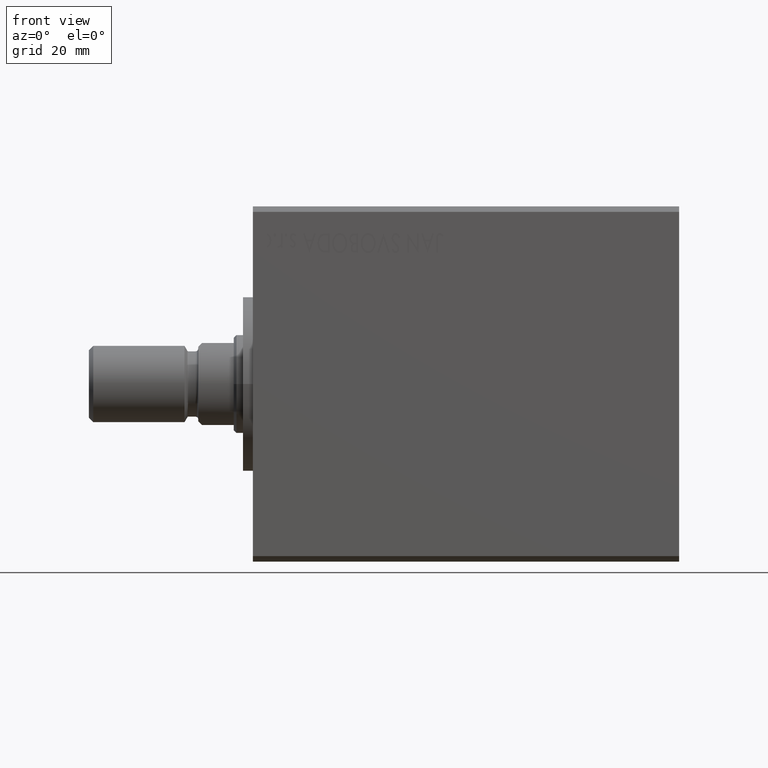
[diagram: clean part render]
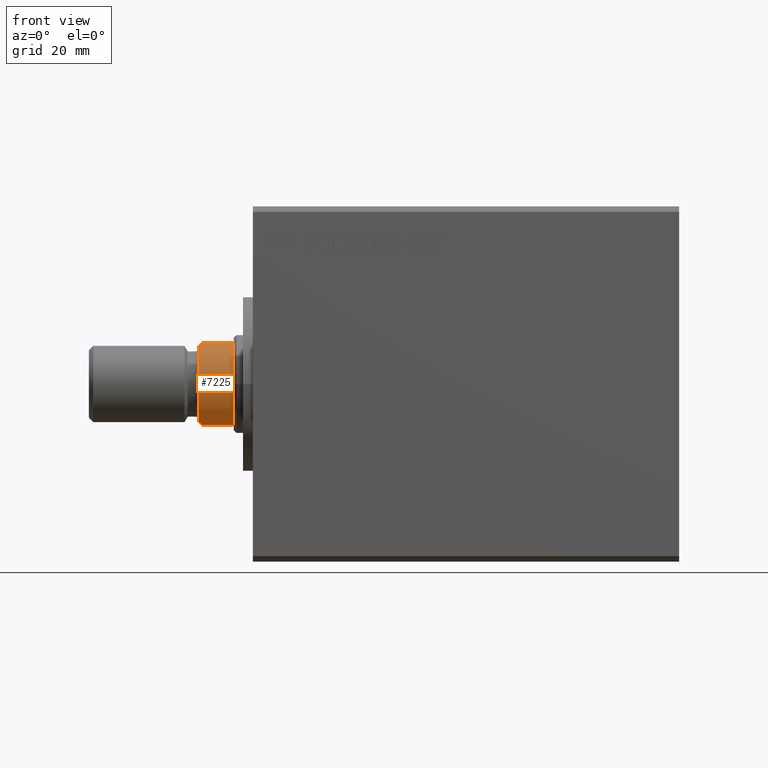
[diagram: same view with one face highlighted and labeled with its STEP entity id]
A machine part, front view. The second image highlights one B-rep face of the part: STEP entity #7225.
In plain terms, the highlighted cylindrical surface (partial cylindrical patch) has radius 8.46 mm, axis along (-1, 0, 0).
Its self-contained STEP definition (entity closure, byte-faithful):
#2417 = CIRCLE ( 'NONE', #39738, 8.460000000000000853 ) ;
#2626 = CARTESIAN_POINT ( 'NONE',  ( 6.789999999999988489, 5.046533463675839215, 65.00000000000000000 ) ) ;
#3780 = VERTEX_POINT ( 'NONE', #29110 ) ;
#4019 = ORIENTED_EDGE ( 'NONE', *, *, #34662, .T. ) ;
#4263 = VERTEX_POINT ( 'NONE', #36418 ) ;
#4539 = DIRECTION ( 'NONE',  ( 0.000000000000000000, -1.000000000000000000, 0.000000000000000000 ) ) ;
#4617 = CARTESIAN_POINT ( 'NONE',  ( 0.000000000000000000, -9.183462669335154191E-15, 58.50000000000000000 ) ) ;
#6935 = DIRECTION ( 'NONE',  ( 0.000000000000000000, -1.000000000000000000, 0.000000000000000000 ) ) ;
#7225 = ADVANCED_FACE ( 'NONE', ( #36801 ), #17042, .T. ) ;
#7471 = CARTESIAN_POINT ( 'NONE',  ( -7.499999999999998224, 3.914281543272016162, 64.29000000000000625 ) ) ;
#7859 = VERTEX_POINT ( 'NONE', #42123 ) ;
#8384 = AXIS2_PLACEMENT_3D ( 'NONE', #31613, #27798, #6935 ) ;
#8515 = ORIENTED_EDGE ( 'NONE', *, *, #42952, .T. ) ;
#8608 = VERTEX_POINT ( 'NONE', #36256 ) ;
#8653 = CIRCLE ( 'NONE', #10816, 8.460000000000000853 ) ;
#9378 = EDGE_CURVE ( 'NONE', #40896, #8608, #13626, .T. ) ;
#9487 = CARTESIAN_POINT ( 'NONE',  ( 7.499999999999998224, 3.914281543272016162, 65.00000000000000000 ) ) ;
#9565 = CARTESIAN_POINT ( 'NONE',  ( 7.499999999999998224, 3.914281543272017050, 58.50000000000000000 ) ) ;
#9639 = DIRECTION ( 'NONE',  ( 0.000000000000000000, -1.000000000000000000, 0.000000000000000000 ) ) ;
#9814 = CARTESIAN_POINT ( 'NONE',  ( -7.499999999999998224, 3.914281543272016162, 65.00000000000000000 ) ) ;
#10256 = DIRECTION ( 'NONE',  ( -0.000000000000000000, -1.569822678518829437E-16, 1.000000000000000000 ) ) ;
#10816 = AXIS2_PLACEMENT_3D ( 'NONE', #35725, #36157, #4539 ) ;
#11372 = DIRECTION ( 'NONE',  ( -0.000000000000000000, -1.569822678518829437E-16, 1.000000000000000000 ) ) ;
#12295 = CARTESIAN_POINT ( 'NONE',  ( 7.056292703106577413, 4.688242476980049034, 64.73370729689341374 ) ) ;
#12381 = ORIENTED_EDGE ( 'NONE', *, *, #9378, .T. ) ;
#12930 = ORIENTED_EDGE ( 'NONE', *, *, #43689, .T. ) ;
#13626 = LINE ( 'NONE', #9814, #35777 ) ;
#14094 = VECTOR ( 'NONE', #23171, 1000.000000000000000 ) ;
#14196 = EDGE_LOOP ( 'NONE', ( #42963, #8515, #4019, #23695, #12930, #12381, #34788 ) ) ;
#15052 = AXIS2_PLACEMENT_3D ( 'NONE', #43779, #37252, #9639 ) ;
#15080 = VERTEX_POINT ( 'NONE', #9565 ) ;
#15285 =( BOUNDED_CURVE ( )  B_SPLINE_CURVE ( 3, ( #2626, #12295, #23269, #40125 ),
 .UNSPECIFIED., .F., .F. ) 
 B_SPLINE_CURVE_WITH_KNOTS ( ( 4, 4 ),
 ( 2.502438275867301165, 2.660575627569334412 ),
 .UNSPECIFIED. ) 
 CURVE ( )  GEOMETRIC_REPRESENTATION_ITEM ( )  RATIONAL_B_SPLINE_CURVE ( ( 1.000000000000000000, 0.9979171336539678361, 0.9979171336539678361, 1.000000000000000000 ) ) 
 REPRESENTATION_ITEM ( '' )  );
#17042 = CYLINDRICAL_SURFACE ( 'NONE', #15052, 8.460000000000000853 ) ;
#19621 = EDGE_CURVE ( 'NONE', #8608, #3780, #41130, .T. ) ;
#19829 = CARTESIAN_POINT ( 'NONE',  ( 6.789999999999988489, 5.046533463675839215, 65.00000000000000000 ) ) ;
#20850 = EDGE_CURVE ( 'NONE', #38342, #3780, #8653, .T. ) ;
#23171 = DIRECTION ( 'NONE',  ( 0.000000000000000000, 1.569822678518829437E-16, -1.000000000000000000 ) ) ;
#23269 = CARTESIAN_POINT ( 'NONE',  ( 7.293453343690122104, 4.310037419592844365, 64.49654665630986017 ) ) ;
#23695 = ORIENTED_EDGE ( 'NONE', *, *, #23703, .T. ) ;
#23703 = EDGE_CURVE ( 'NONE', #15080, #7859, #2417, .T. ) ;
#27671 = CARTESIAN_POINT ( 'NONE',  ( -7.056292703106578301, 4.688242476980047257, 64.73370729689341374 ) ) ;
#27798 = DIRECTION ( 'NONE',  ( -0.000000000000000000, -1.569822678518829437E-16, 1.000000000000000000 ) ) ;
#29110 = CARTESIAN_POINT ( 'NONE',  ( -6.789999999999988489, 5.046533463675839215, 65.00000000000000000 ) ) ;
#31613 = CARTESIAN_POINT ( 'NONE',  ( 0.000000000000000000, -9.183462669335154191E-15, 58.50000000000000000 ) ) ;
#33006 = CARTESIAN_POINT ( 'NONE',  ( -7.499999999999998224, 3.914281543272017050, 58.50000000000000000 ) ) ;
#34662 = EDGE_CURVE ( 'NONE', #4263, #15080, #37317, .T. ) ;
#34788 = ORIENTED_EDGE ( 'NONE', *, *, #19621, .T. ) ;
#35614 = CIRCLE ( 'NONE', #8384, 8.460000000000000853 ) ;
#35725 = CARTESIAN_POINT ( 'NONE',  ( 0.000000000000000000, -1.020384741037239284E-14, 65.00000000000000000 ) ) ;
#35777 = VECTOR ( 'NONE', #10256, 1000.000000000000000 ) ;
#36157 = DIRECTION ( 'NONE',  ( -0.000000000000000000, -1.569822678518829437E-16, 1.000000000000000000 ) ) ;
#36256 = CARTESIAN_POINT ( 'NONE',  ( -7.499999999999998224, 3.914281543272016162, 64.29000000000000625 ) ) ;
#36418 = CARTESIAN_POINT ( 'NONE',  ( 7.499999999999998224, 3.914281543272016162, 64.29000000000000625 ) ) ;
#36801 = FACE_OUTER_BOUND ( 'NONE', #14196, .T. ) ;
#37252 = DIRECTION ( 'NONE',  ( -0.000000000000000000, -1.569822678518829437E-16, 1.000000000000000000 ) ) ;
#37317 = LINE ( 'NONE', #9487, #14094 ) ;
#37799 = CARTESIAN_POINT ( 'NONE',  ( -6.789999999999988489, 5.046533463675839215, 65.00000000000000000 ) ) ;
#38342 = VERTEX_POINT ( 'NONE', #19829 ) ;
#39738 = AXIS2_PLACEMENT_3D ( 'NONE', #4617, #11372, #42791 ) ;
#40125 = CARTESIAN_POINT ( 'NONE',  ( 7.499999999999998224, 3.914281543272016162, 64.29000000000000625 ) ) ;
#40896 = VERTEX_POINT ( 'NONE', #33006 ) ;
#41130 =( BOUNDED_CURVE ( )  B_SPLINE_CURVE ( 3, ( #7471, #41826, #27671, #37799 ),
 .UNSPECIFIED., .F., .F. ) 
 B_SPLINE_CURVE_WITH_KNOTS ( ( 4, 4 ),
 ( 3.622609679610251820, 3.780747031312285067 ),
 .UNSPECIFIED. ) 
 CURVE ( )  GEOMETRIC_REPRESENTATION_ITEM ( )  RATIONAL_B_SPLINE_CURVE ( ( 1.000000000000000000, 0.9979171336539678361, 0.9979171336539678361, 1.000000000000000000 ) ) 
 REPRESENTATION_ITEM ( '' )  );
#41826 = CARTESIAN_POINT ( 'NONE',  ( -7.293453343690122992, 4.310037419592843477, 64.49654665630986017 ) ) ;
#42123 = CARTESIAN_POINT ( 'NONE',  ( 0.000000000000000000, 8.459999999999991971, 58.50000000000000000 ) ) ;
#42791 = DIRECTION ( 'NONE',  ( 0.000000000000000000, -1.000000000000000000, 0.000000000000000000 ) ) ;
#42952 = EDGE_CURVE ( 'NONE', #38342, #4263, #15285, .T. ) ;
#42963 = ORIENTED_EDGE ( 'NONE', *, *, #20850, .F. ) ;
#43689 = EDGE_CURVE ( 'NONE', #7859, #40896, #35614, .T. ) ;
#43779 = CARTESIAN_POINT ( 'NONE',  ( 0.000000000000000000, -1.020384741037239284E-14, 65.00000000000000000 ) ) ;